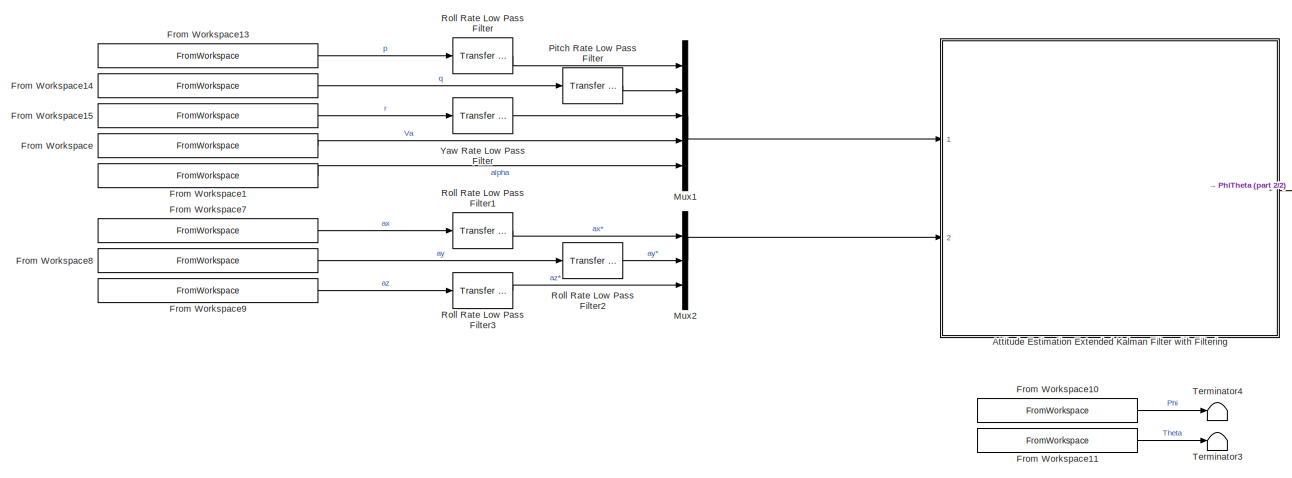
[diagram: root canvas - part 1/2, most of the canvas]
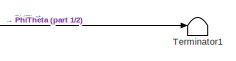
[diagram: root canvas - part 2/2, middle right region]
MODEL slx_bbb9a61e301a
KIND model
CONFIG AbsTol = auto
CONFIG EnableMultiTasking = off
CONFIG FixedStep = 0.001
CONFIG MaxStep = auto
CONFIG MinStep = auto
CONFIG RelTol = 1e-3
CONFIG SampleTimeConstraint = Unconstrained
CONFIG Solver = FixedStepAuto
CONFIG SolverName = FixedStepAuto
CONFIG StartTime = 0.0
CONFIG StopTime = 120
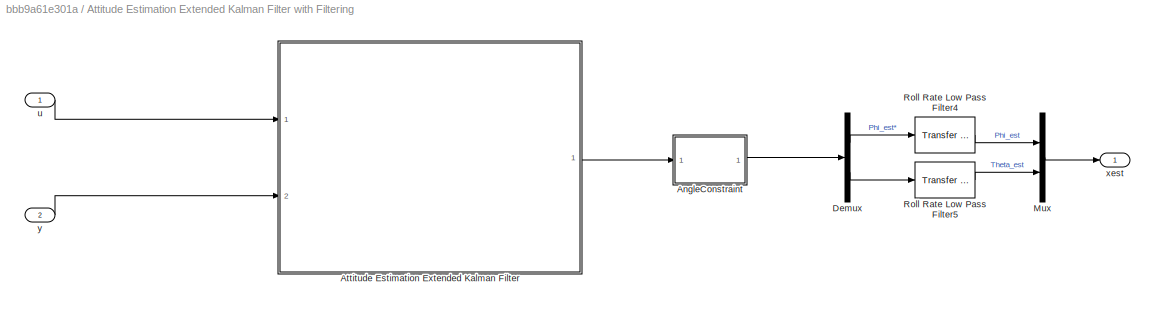
BLOCK [SubSystem] Attitude Estimation Extended Kalman Filter with Filtering
  Ports = [2, 1]
  RequestExecContextInheritance = off
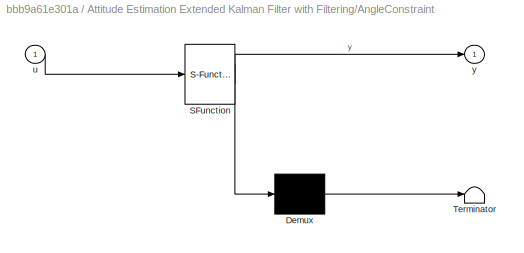
BLOCK [SubSystem] Attitude Estimation Extended Kalman Filter with Filtering/AngleConstraint
  ErrorFcn = Stateflow.Translate.translate
  PermitHierarchicalResolution = ExplicitOnly
  Ports = [1, 1]
  RequestExecContextInheritance = off
  SFBlockType = MATLAB Function
  TreatAsAtomicUnit = on
BLOCK [Demux] Attitude Estimation Extended Kalman Filter with Filtering/AngleConstraint/ Demux 
  Outputs = 1
  Ports = [1, 1]
BLOCK [S-Function] Attitude Estimation Extended Kalman Filter with Filtering/AngleConstraint/ SFunction 
  EnableBusSupport = on
  FunctionName = sf_sfun
  PortCounts = [1 2]
  Ports = [1, 2]
  SFcnIsStateOwnerBlock = off
  SFunctionDeploymentMode = off
  Tag = Stateflow S-Function attitudeEstimationVerification 1
BLOCK [Terminator] Attitude Estimation Extended Kalman Filter with Filtering/AngleConstraint/ Terminator 
BLOCK [Inport] Attitude Estimation Extended Kalman Filter with Filtering/AngleConstraint/u
  IconDisplay = Port number
BLOCK [Outport] Attitude Estimation Extended Kalman Filter with Filtering/AngleConstraint/y
  IconDisplay = Port number
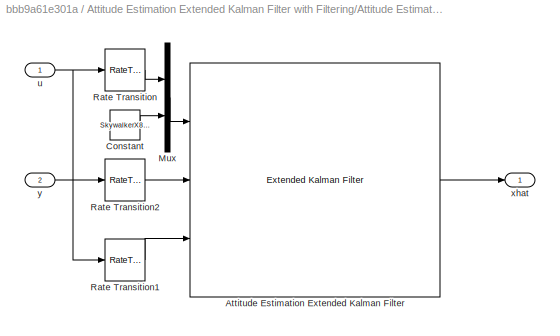
BLOCK [SubSystem] Attitude Estimation Extended Kalman Filter with Filtering/Attitude Estimation Extended Kalman Filter
  Ports = [2, 1]
  RequestExecContextInheritance = off
BLOCK [Reference] Attitude Estimation Extended Kalman Filter with Filtering/Attitude Estimation Extended Kalman Filter/Attitude Estimation Extended Kalman Filter  REF=sharedTrackingLibrary/Extended Kalman Filter
  Ports = [3, 1]
  SourceBlock = sharedTrackingLibrary/Extended Kalman Filter
  SourceProductBaseCode = CT
  SourceProductName = Control System Toolbox
  SourceType = Extended Kalman Filter
BLOCK [Constant] Attitude Estimation Extended Kalman Filter with Filtering/Attitude Estimation Extended Kalman Filter/Constant
  Value = SkywalkerX8.Sensors.EKF.Attitude.StateTransitionSampleTime
BLOCK [Mux] Attitude Estimation Extended Kalman Filter with Filtering/Attitude Estimation Extended Kalman Filter/Mux
  DisplayOption = bar
  Inputs = 2
  Ports = [2, 1]
BLOCK [RateTransition] Attitude Estimation Extended Kalman Filter with Filtering/Attitude Estimation Extended Kalman Filter/Rate Transition
  InitialCondition = SkywalkerX8.Sensors.EKF.Attitude.InitialInput
  OutPortSampleTime = SkywalkerX8.Sensors.EKF.Attitude.StateTransitionSampleTime
BLOCK [RateTransition] Attitude Estimation Extended Kalman Filter with Filtering/Attitude Estimation Extended Kalman Filter/Rate Transition1
  InitialCondition = SkywalkerX8.Sensors.EKF.Attitude.InitialInput
  OutPortSampleTime = SkywalkerX8.Sensors.EKF.Attitude.MeasurementSampleTime
BLOCK [RateTransition] Attitude Estimation Extended Kalman Filter with Filtering/Attitude Estimation Extended Kalman Filter/Rate Transition2
  InitialCondition = SkywalkerX8.Sensors.EKF.Attitude.InitialMeasurement
  OutPortSampleTime = SkywalkerX8.Sensors.EKF.Attitude.MeasurementSampleTime
BLOCK [Inport] Attitude Estimation Extended Kalman Filter with Filtering/Attitude Estimation Extended Kalman Filter/u
  IconDisplay = Port number
BLOCK [Outport] Attitude Estimation Extended Kalman Filter with Filtering/Attitude Estimation Extended Kalman Filter/xhat
  IconDisplay = Port number
BLOCK [Inport] Attitude Estimation Extended Kalman Filter with Filtering/Attitude Estimation Extended Kalman Filter/y
  IconDisplay = Port number
  Port = 2
BLOCK [Demux] Attitude Estimation Extended Kalman Filter with Filtering/Demux
  DisplayOption = bar
  Outputs = 2
  Ports = [1, 2]
BLOCK [Mux] Attitude Estimation Extended Kalman Filter with Filtering/Mux
  DisplayOption = bar
  Inputs = 2
  Ports = [2, 1]
BLOCK [Reference] Attitude Estimation Extended Kalman Filter with Filtering/Roll Rate Low Pass Filter4  REF=simulink_extras/Additional
Linear/Transfer Fcn
(with initial outputs)
  Ports = [1, 1]
  SourceBlock = simulink_extras/Additional\nLinear/Transfer Fcn\n(with initial outputs)
  SourceProductBaseCode = SL
  SourceProductName = Simulink
  SourceType = Transfer Function with Initial Outputs
BLOCK [Reference] Attitude Estimation Extended Kalman Filter with Filtering/Roll Rate Low Pass Filter5  REF=simulink_extras/Additional
Linear/Transfer Fcn
(with initial outputs)
  Ports = [1, 1]
  SourceBlock = simulink_extras/Additional\nLinear/Transfer Fcn\n(with initial outputs)
  SourceProductBaseCode = SL
  SourceProductName = Simulink
  SourceType = Transfer Function with Initial Outputs
BLOCK [Inport] Attitude Estimation Extended Kalman Filter with Filtering/u
  IconDisplay = Port number
BLOCK [Outport] Attitude Estimation Extended Kalman Filter with Filtering/xest
  IconDisplay = Port number
BLOCK [Inport] Attitude Estimation Extended Kalman Filter with Filtering/y
  IconDisplay = Port number
  Port = 2
BLOCK [FromWorkspace] From Workspace
  Interpolate = off
  OutputAfterFinalValue = Holding final value
  VariableName = SkywalkerX8.Sensors.EKF.Attitude.TestProfile.Va
  ZeroCross = on
BLOCK [FromWorkspace] From Workspace1
  Interpolate = off
  OutputAfterFinalValue = Holding final value
  VariableName = SkywalkerX8.Sensors.EKF.Attitude.TestProfile.alpha
  ZeroCross = on
BLOCK [FromWorkspace] From Workspace10
  Interpolate = off
  OutputAfterFinalValue = Holding final value
  VariableName = SkywalkerX8.Sensors.TestProfile.Phi
  ZeroCross = on
BLOCK [FromWorkspace] From Workspace11
  Interpolate = off
  OutputAfterFinalValue = Holding final value
  VariableName = SkywalkerX8.Sensors.TestProfile.Theta
  ZeroCross = on
BLOCK [FromWorkspace] From Workspace13
  Interpolate = off
  OutputAfterFinalValue = Holding final value
  VariableName = SkywalkerX8.Sensors.EKF.Attitude.TestProfile.p
  ZeroCross = on
BLOCK [FromWorkspace] From Workspace14
  Interpolate = off
  OutputAfterFinalValue = Holding final value
  VariableName = SkywalkerX8.Sensors.EKF.Attitude.TestProfile.q
  ZeroCross = on
BLOCK [FromWorkspace] From Workspace15
  Interpolate = off
  OutputAfterFinalValue = Holding final value
  VariableName = SkywalkerX8.Sensors.EKF.Attitude.TestProfile.r
  ZeroCross = on
BLOCK [FromWorkspace] From Workspace7
  Interpolate = off
  OutputAfterFinalValue = Holding final value
  VariableName = SkywalkerX8.Sensors.EKF.Attitude.TestProfile.ax
  ZeroCross = on
BLOCK [FromWorkspace] From Workspace8
  Interpolate = off
  OutputAfterFinalValue = Holding final value
  VariableName = SkywalkerX8.Sensors.EKF.Attitude.TestProfile.ay
  ZeroCross = on
BLOCK [FromWorkspace] From Workspace9
  Interpolate = off
  OutputAfterFinalValue = Holding final value
  VariableName = SkywalkerX8.Sensors.EKF.Attitude.TestProfile.az
  ZeroCross = on
BLOCK [Mux] Mux1
  DisplayOption = bar
  Inputs = 5
  Ports = [5, 1]
BLOCK [Mux] Mux2
  DisplayOption = bar
  Inputs = 3
  Ports = [3, 1]
BLOCK [Reference] Pitch Rate Low Pass Filter  REF=simulink_extras/Additional
Linear/Transfer Fcn
(with initial outputs)
  Ports = [1, 1]
  SourceBlock = simulink_extras/Additional\nLinear/Transfer Fcn\n(with initial outputs)
  SourceProductBaseCode = SL
  SourceProductName = Simulink
  SourceType = Transfer Function with Initial Outputs
BLOCK [Reference] Roll Rate Low Pass Filter  REF=simulink_extras/Additional
Linear/Transfer Fcn
(with initial outputs)
  Ports = [1, 1]
  SourceBlock = simulink_extras/Additional\nLinear/Transfer Fcn\n(with initial outputs)
  SourceProductBaseCode = SL
  SourceProductName = Simulink
  SourceType = Transfer Function with Initial Outputs
BLOCK [Reference] Roll Rate Low Pass Filter1  REF=simulink_extras/Additional
Linear/Transfer Fcn
(with initial outputs)
  Ports = [1, 1]
  SourceBlock = simulink_extras/Additional\nLinear/Transfer Fcn\n(with initial outputs)
  SourceProductBaseCode = SL
  SourceProductName = Simulink
  SourceType = Transfer Function with Initial Outputs
BLOCK [Reference] Roll Rate Low Pass Filter2  REF=simulink_extras/Additional
Linear/Transfer Fcn
(with initial outputs)
  Ports = [1, 1]
  SourceBlock = simulink_extras/Additional\nLinear/Transfer Fcn\n(with initial outputs)
  SourceProductBaseCode = SL
  SourceProductName = Simulink
  SourceType = Transfer Function with Initial Outputs
BLOCK [Reference] Roll Rate Low Pass Filter3  REF=simulink_extras/Additional
Linear/Transfer Fcn
(with initial outputs)
  Ports = [1, 1]
  SourceBlock = simulink_extras/Additional\nLinear/Transfer Fcn\n(with initial outputs)
  SourceProductBaseCode = SL
  SourceProductName = Simulink
  SourceType = Transfer Function with Initial Outputs
BLOCK [Terminator] Terminator1
BLOCK [Terminator] Terminator3
BLOCK [Terminator] Terminator4
BLOCK [Reference] Yaw Rate Low Pass Filter  REF=simulink_extras/Additional
Linear/Transfer Fcn
(with initial outputs)
  Ports = [1, 1]
  SourceBlock = simulink_extras/Additional\nLinear/Transfer Fcn\n(with initial outputs)
  SourceProductBaseCode = SL
  SourceProductName = Simulink
  SourceType = Transfer Function with Initial Outputs
LINE Attitude Estimation Extended Kalman Filter with Filtering/AngleConstraint:1 -> Attitude Estimation Extended Kalman Filter with Filtering/Demux:1
LINE Attitude Estimation Extended Kalman Filter with Filtering/Attitude Estimation Extended Kalman Filter/Attitude Estimation Extended Kalman Filter:1 -> Attitude Estimation Extended Kalman Filter with Filtering/Attitude Estimation Extended Kalman Filter/xhat:1
LINE Attitude Estimation Extended Kalman Filter with Filtering/Attitude Estimation Extended Kalman Filter/Constant:1 -> Attitude Estimation Extended Kalman Filter with Filtering/Attitude Estimation Extended Kalman Filter/Mux:2
LINE Attitude Estimation Extended Kalman Filter with Filtering/Attitude Estimation Extended Kalman Filter/Mux:1 -> Attitude Estimation Extended Kalman Filter with Filtering/Attitude Estimation Extended Kalman Filter/Attitude Estimation Extended Kalman Filter:1
LINE Attitude Estimation Extended Kalman Filter with Filtering/Attitude Estimation Extended Kalman Filter/Rate Transition1:1 -> Attitude Estimation Extended Kalman Filter with Filtering/Attitude Estimation Extended Kalman Filter/Attitude Estimation Extended Kalman Filter:3
LINE Attitude Estimation Extended Kalman Filter with Filtering/Attitude Estimation Extended Kalman Filter/Rate Transition2:1 -> Attitude Estimation Extended Kalman Filter with Filtering/Attitude Estimation Extended Kalman Filter/Attitude Estimation Extended Kalman Filter:2
LINE Attitude Estimation Extended Kalman Filter with Filtering/Attitude Estimation Extended Kalman Filter/Rate Transition:1 -> Attitude Estimation Extended Kalman Filter with Filtering/Attitude Estimation Extended Kalman Filter/Mux:1
NET Attitude Estimation Extended Kalman Filter with Filtering/Attitude Estimation Extended Kalman Filter/u:1 -> Attitude Estimation Extended Kalman Filter with Filtering/Attitude Estimation Extended Kalman Filter/Rate Transition1:1, Attitude Estimation Extended Kalman Filter with Filtering/Attitude Estimation Extended Kalman Filter/Rate Transition:1
LINE Attitude Estimation Extended Kalman Filter with Filtering/Attitude Estimation Extended Kalman Filter/y:1 -> Attitude Estimation Extended Kalman Filter with Filtering/Attitude Estimation Extended Kalman Filter/Rate Transition2:1
LINE Attitude Estimation Extended Kalman Filter with Filtering/Attitude Estimation Extended Kalman Filter:1 -> Attitude Estimation Extended Kalman Filter with Filtering/AngleConstraint:1
LINE Attitude Estimation Extended Kalman Filter with Filtering/Demux:1 -> Attitude Estimation Extended Kalman Filter with Filtering/Roll Rate Low Pass Filter4:1
LINE Attitude Estimation Extended Kalman Filter with Filtering/Demux:2 -> Attitude Estimation Extended Kalman Filter with Filtering/Roll Rate Low Pass Filter5:1
LINE Attitude Estimation Extended Kalman Filter with Filtering/Mux:1 -> Attitude Estimation Extended Kalman Filter with Filtering/xest:1
LINE Attitude Estimation Extended Kalman Filter with Filtering/Roll Rate Low Pass Filter4:1 -> Attitude Estimation Extended Kalman Filter with Filtering/Mux:1
LINE Attitude Estimation Extended Kalman Filter with Filtering/Roll Rate Low Pass Filter5:1 -> Attitude Estimation Extended Kalman Filter with Filtering/Mux:2
LINE Attitude Estimation Extended Kalman Filter with Filtering/u:1 -> Attitude Estimation Extended Kalman Filter with Filtering/Attitude Estimation Extended Kalman Filter:1
LINE Attitude Estimation Extended Kalman Filter with Filtering/y:1 -> Attitude Estimation Extended Kalman Filter with Filtering/Attitude Estimation Extended Kalman Filter:2
LINE Attitude Estimation Extended Kalman Filter with Filtering:1 -> Terminator1:1
LINE From Workspace10:1 -> Terminator4:1
LINE From Workspace11:1 -> Terminator3:1
LINE From Workspace13:1 -> Roll Rate Low Pass Filter:1
LINE From Workspace14:1 -> Pitch Rate Low Pass Filter:1
LINE From Workspace15:1 -> Yaw Rate Low Pass Filter:1
LINE From Workspace1:1 -> Mux1:5
LINE From Workspace7:1 -> Roll Rate Low Pass Filter1:1
LINE From Workspace8:1 -> Roll Rate Low Pass Filter2:1
LINE From Workspace9:1 -> Roll Rate Low Pass Filter3:1
LINE From Workspace:1 -> Mux1:4
LINE Mux1:1 -> Attitude Estimation Extended Kalman Filter with Filtering:1
LINE Mux2:1 -> Attitude Estimation Extended Kalman Filter with Filtering:2
LINE Pitch Rate Low Pass Filter:1 -> Mux1:2
LINE Roll Rate Low Pass Filter1:1 -> Mux2:1
LINE Roll Rate Low Pass Filter2:1 -> Mux2:2
LINE Roll Rate Low Pass Filter3:1 -> Mux2:3
LINE Roll Rate Low Pass Filter:1 -> Mux1:1
LINE Yaw Rate Low Pass Filter:1 -> Mux1:3
note: NET lines group one-source signal fan-out (src -> all destinations, sorted); 1:1 wires keep LINE
CHART Attitude Estimation
Extended Kalman Filter
with Filtering/AngleConstraint states=1 transitions=1
  STATE_LABEL 'eML_blk_kernel()'
  STATE_LABEL 'SCRIPT:\nfunction y = fcn(u)\n\ny = zeros(1, 2);\n\ny(1) = asin(sin(u(1)));\ny(2) = asin(sin(u(2)));\n'
